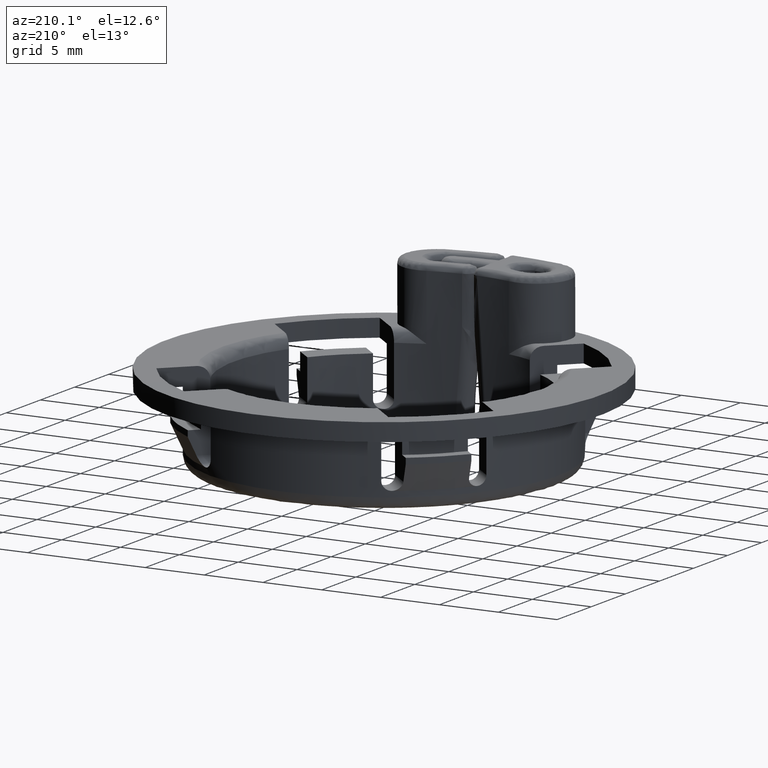
[diagram: clean part render]
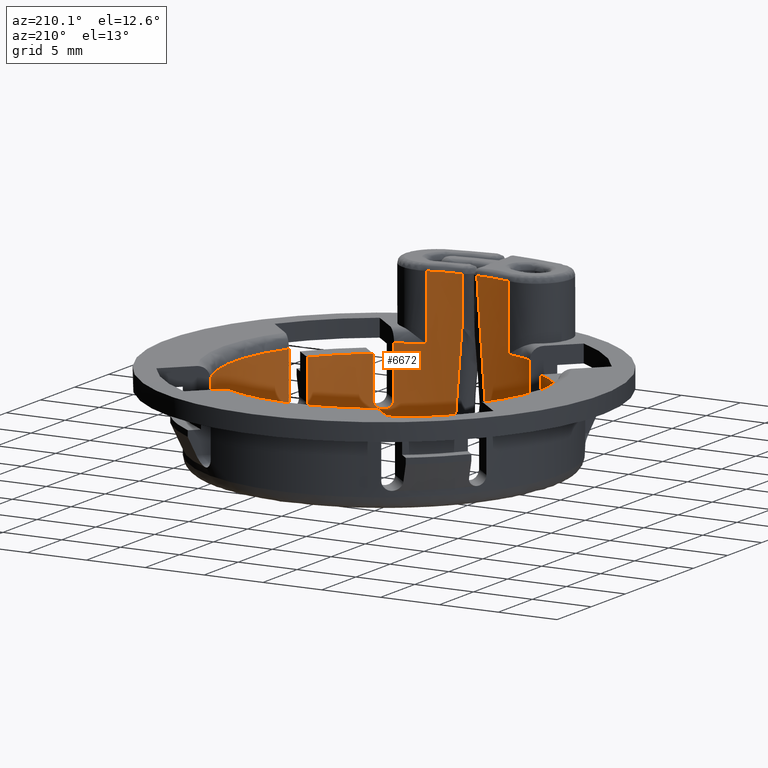
[diagram: same view with one face highlighted and labeled with its STEP entity id]
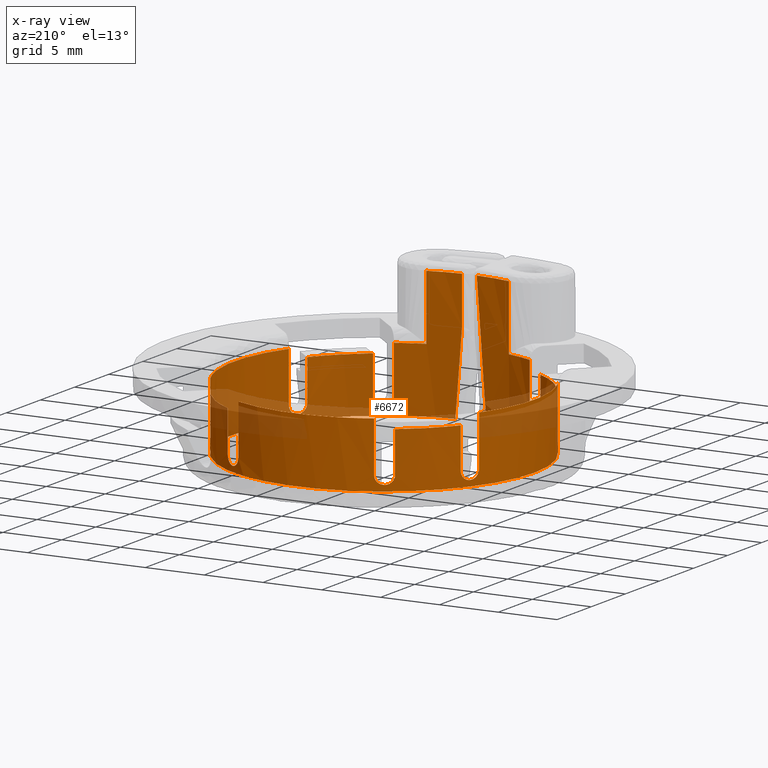
[diagram: x-ray of the same camera — body ghosted, the highlighted face saturated]
A machine part, auxiliary view. The second image highlights one B-rep face of the part: STEP entity #6672.
The next image is the same camera in x-ray: the body ghosted, the highlighted face saturated — about 16% of this face is hidden behind the body in this view.
In plain terms, the highlighted face is a freeform B-spline surface patch.
Its self-contained STEP definition (entity closure, byte-faithful):
#255=CARTESIAN_POINT('',(-11.426101228828021,5.769246979335611,6.500000000000000));
#256=VERTEX_POINT('',#255);
#301=CARTESIAN_POINT('',(-11.426101228827919,-5.769246979335651,6.500000000000000));
#302=VERTEX_POINT('',#301);
#331=CARTESIAN_POINT('',(-11.426101228828021,5.769246979335615,6.500000000000000));
#332=CARTESIAN_POINT('',(-14.339099288445963,-3.749084E-014,6.500000000000000));
#333=CARTESIAN_POINT('',(-11.426101228827919,-5.769246979335651,6.500000000000000));
#341=(BOUNDED_CURVE()B_SPLINE_CURVE(2,(#331,#332,#333),.UNSPECIFIED.,.F.,.U.)CURVE()GEOMETRIC_REPRESENTATION_ITEM()QUASI_UNIFORM_CURVE()RATIONAL_B_SPLINE_CURVE((1.0,0.892664158502192,1.0))REPRESENTATION_ITEM(''));
#342=EDGE_CURVE('',#256,#302,#341,.T.);
#366=CARTESIAN_POINT('',(5.769246979335620,11.426101228828021,6.500000000000000));
#367=VERTEX_POINT('',#366);
#412=CARTESIAN_POINT('',(-5.769246979335640,11.426101228827919,6.500000000000000));
#413=VERTEX_POINT('',#412);
#442=CARTESIAN_POINT('',(5.769246979335620,11.426101228828021,6.500000000000000));
#443=CARTESIAN_POINT('',(-2.688821E-014,14.339099288445766,6.500000000000000));
#444=CARTESIAN_POINT('',(-5.769246979335634,11.426101228827930,6.500000000000000));
#452=(BOUNDED_CURVE()B_SPLINE_CURVE(2,(#442,#443,#444),.UNSPECIFIED.,.F.,.U.)CURVE()GEOMETRIC_REPRESENTATION_ITEM()QUASI_UNIFORM_CURVE()RATIONAL_B_SPLINE_CURVE((1.0,0.892664158502195,1.0))REPRESENTATION_ITEM(''));
#453=EDGE_CURVE('',#367,#413,#452,.T.);
#477=CARTESIAN_POINT('',(11.426101228828040,-5.769246979335611,6.500000000000000));
#478=VERTEX_POINT('',#477);
#523=CARTESIAN_POINT('',(11.426101228827941,5.769246979335651,6.500000000000000));
#524=VERTEX_POINT('',#523);
#553=CARTESIAN_POINT('',(11.426101228828040,-5.769246979335611,6.500000000000000));
#554=CARTESIAN_POINT('',(14.339099288445958,4.230644E-014,6.500000000000000));
#555=CARTESIAN_POINT('',(11.426101228827941,5.769246979335651,6.500000000000000));
#563=(BOUNDED_CURVE()B_SPLINE_CURVE(2,(#553,#554,#555),.UNSPECIFIED.,.F.,.U.)CURVE()GEOMETRIC_REPRESENTATION_ITEM()QUASI_UNIFORM_CURVE()RATIONAL_B_SPLINE_CURVE((1.0,0.892664158502193,1.0))REPRESENTATION_ITEM(''));
#564=EDGE_CURVE('',#478,#524,#563,.T.);
#588=CARTESIAN_POINT('',(-5.769246979335600,-11.426101228828021,6.500000000000000));
#589=VERTEX_POINT('',#588);
#634=CARTESIAN_POINT('',(-3.465520429572950,-12.321938490036800,6.500000000000000));
#635=VERTEX_POINT('',#634);
#661=CARTESIAN_POINT('',(-5.769246979335600,-11.426101228828021,6.500000000000000));
#662=CARTESIAN_POINT('',(-4.660834955743553,-11.985758682486550,6.500000000000000));
#663=CARTESIAN_POINT('',(-3.465520429572950,-12.321938490036800,6.500000000000000));
#671=(BOUNDED_CURVE()B_SPLINE_CURVE(2,(#661,#662,#663),.UNSPECIFIED.,.F.,.U.)CURVE()GEOMETRIC_REPRESENTATION_ITEM()QUASI_UNIFORM_CURVE()RATIONAL_B_SPLINE_CURVE((1.0,0.995327768893923,1.0))REPRESENTATION_ITEM(''));
#672=EDGE_CURVE('',#589,#635,#671,.T.);
#696=CARTESIAN_POINT('',(3.523634311004535,-12.305445999325480,6.500000000000000));
#697=VERTEX_POINT('',#696);
#738=CARTESIAN_POINT('',(5.769246979335670,-11.426101228827919,6.500000000000000));
#739=VERTEX_POINT('',#738);
#768=CARTESIAN_POINT('',(3.523634311004534,-12.305445999325480,6.500000000000000));
#769=CARTESIAN_POINT('',(4.688044922747928,-11.972019873700958,6.500000000000000));
#770=CARTESIAN_POINT('',(5.769246979335670,-11.426101228827919,6.500000000000000));
#778=(BOUNDED_CURVE()B_SPLINE_CURVE(2,(#768,#769,#770),.UNSPECIFIED.,.F.,.U.)CURVE()GEOMETRIC_REPRESENTATION_ITEM()QUASI_UNIFORM_CURVE()RATIONAL_B_SPLINE_CURVE((1.0,0.995552837598897,1.0))REPRESENTATION_ITEM(''));
#779=EDGE_CURVE('',#697,#739,#778,.T.);
#932=CARTESIAN_POINT('',(-1.317224701742422,-12.732043005155299,0.999999999999890));
#933=VERTEX_POINT('',#932);
#990=CARTESIAN_POINT('',(-0.490827067669135,-12.790585943952960,11.691519390824901));
#991=VERTEX_POINT('',#990);
#1034=CARTESIAN_POINT('',(-0.490827067669135,-12.790585943952960,11.691519390824901));
#1035=CARTESIAN_POINT('',(-0.904973666108286,-12.774693446033966,6.333497773517452));
#1036=CARTESIAN_POINT('',(-1.317224701742425,-12.732043005155280,0.999999999999914));
#1044=(BOUNDED_CURVE()B_SPLINE_CURVE(2,(#1034,#1035,#1036),.UNSPECIFIED.,.F.,.U.)CURVE()GEOMETRIC_REPRESENTATION_ITEM()QUASI_UNIFORM_CURVE()RATIONAL_B_SPLINE_CURVE((1.0,0.999476211451635,1.0))REPRESENTATION_ITEM(''));
#1045=EDGE_CURVE('',#991,#933,#1044,.T.);
#1070=CARTESIAN_POINT('',(0.775045871559728,-12.776513761468040,8.014438615488121));
#1071=VERTEX_POINT('',#1070);
#1095=CARTESIAN_POINT('',(1.317224701742442,-12.732043005155280,0.999999999999892));
#1096=VERTEX_POINT('',#1095);
#1097=CARTESIAN_POINT('',(1.317224701742443,-12.732043005155280,0.999999999999907));
#1098=CARTESIAN_POINT('',(1.046607894781262,-12.760040329912327,4.501104940059881));
#1099=CARTESIAN_POINT('',(0.775045871559732,-12.776513761468040,8.014438615488123));
#1107=(BOUNDED_CURVE()B_SPLINE_CURVE(2,(#1097,#1098,#1099),.UNSPECIFIED.,.F.,.U.)CURVE()GEOMETRIC_REPRESENTATION_ITEM()QUASI_UNIFORM_CURVE()RATIONAL_B_SPLINE_CURVE((1.0,0.999774193612261,1.0))REPRESENTATION_ITEM(''));
#1108=EDGE_CURVE('',#1096,#1071,#1107,.T.);
#1367=CARTESIAN_POINT('',(-1.317224701742417,-12.732043005155290,0.999999999999890));
#1368=CARTESIAN_POINT('',(-13.409341111905693,-11.481023477074618,0.999999999999890));
#1369=CARTESIAN_POINT('',(-12.782999461511089,0.659488261462606,0.999999999999890));
#1370=CARTESIAN_POINT('',(-12.156657811116487,12.799999999999846,0.999999999999890));
#1371=CARTESIAN_POINT('',(0.0,12.799999999999841,0.999999999999890));
#1372=CARTESIAN_POINT('',(12.156657811116467,12.799999999999846,0.999999999999890));
#1373=CARTESIAN_POINT('',(12.782999461511089,0.659488261462628,0.999999999999890));
#1374=CARTESIAN_POINT('',(13.409341111905714,-11.481023477074594,0.999999999999890));
#1375=CARTESIAN_POINT('',(1.317224701742444,-12.732043005155280,0.999999999999890));
#1383=(BOUNDED_CURVE()B_SPLINE_CURVE(2,(#1367,#1368,#1369,#1370,#1371,#1372,#1373,#1374,#1375),.UNSPECIFIED.,.F.,.U.)B_SPLINE_CURVE_WITH_KNOTS((3,2,2,2,3),(0.0,0.250000000000000,0.500000000000000,0.750000000000000,1.0),.UNSPECIFIED.)CURVE()GEOMETRIC_REPRESENTATION_ITEM()RATIONAL_B_SPLINE_CURVE((1.0,0.725093966471512,1.0,0.725093966471512,1.0,0.725093966471512,1.0,0.725093966471512,1.0))REPRESENTATION_ITEM(''));
#1384=EDGE_CURVE('',#933,#1096,#1383,.T.);
#1466=CARTESIAN_POINT('',(11.426101228828040,-5.769246979335611,2.250000000000085));
#1467=VERTEX_POINT('',#1466);
#1473=CARTESIAN_POINT('',(10.644421728274480,-7.108887822341599,2.249999999999975));
#1474=VERTEX_POINT('',#1473);
#1475=CARTESIAN_POINT('',(10.644421728274480,-7.108887822341599,2.249999999999975));
#1476=CARTESIAN_POINT('',(10.644421728274510,-7.108887822341564,2.199601309834479));
#1477=CARTESIAN_POINT('',(10.647271355832810,-7.104626198292006,2.150078416635004));
#1478=CARTESIAN_POINT('',(10.655618103664271,-7.092096165056784,2.077052397637483));
#1479=CARTESIAN_POINT('',(10.659083941296210,-7.086888324420547,2.052921742902110));
#1480=CARTESIAN_POINT('',(10.667406613739359,-7.074354580281988,2.005093318093060));
#1481=CARTESIAN_POINT('',(10.672272573631940,-7.067014617621638,1.981406858999947));
#1482=CARTESIAN_POINT('',(10.688607769308630,-7.042304588709947,1.912610702677106));
#1483=CARTESIAN_POINT('',(10.701886054756120,-7.022139803950964,1.869182595362788));
#1484=CARTESIAN_POINT('',(10.725263581400240,-6.986338400642744,1.807665205409178));
#1485=CARTESIAN_POINT('',(10.733689111250580,-6.973391116625754,1.787663057246907));
#1486=CARTESIAN_POINT('',(10.751411709371640,-6.946035693688929,1.749580200353084));
#1487=CARTESIAN_POINT('',(10.760705395500031,-6.931633421230110,1.731477792505301));
#1488=CARTESIAN_POINT('',(10.789816630151430,-6.886301406991368,1.679901969772479));
#1489=CARTESIAN_POINT('',(10.810853089027169,-6.853266457607753,1.649134447485439));
#1490=CARTESIAN_POINT('',(10.856116733204081,-6.781337266833591,1.595009504673042));
#1491=CARTESIAN_POINT('',(10.879607495721670,-6.743610531696018,1.572530010306137));
#1492=CARTESIAN_POINT('',(10.915970823536240,-6.684468306884869,1.545309215109240));
#1493=CARTESIAN_POINT('',(10.928281671298370,-6.664325880981391,1.537326715793382));
#1494=CARTESIAN_POINT('',(10.953276365746250,-6.623165148985705,1.523574294658140));
#1495=CARTESIAN_POINT('',(10.965985129478961,-6.602103987775610,1.517806591990187));
#1496=CARTESIAN_POINT('',(11.003983859013550,-6.538712941549592,1.504146857308882));
#1497=CARTESIAN_POINT('',(11.029400376865301,-6.495756985102873,1.499725633300475));
#1498=CARTESIAN_POINT('',(11.080125403077609,-6.408849548459013,1.500300538301437));
#1499=CARTESIAN_POINT('',(11.104829096754340,-6.365936511187569,1.505273604238469));
#1500=CARTESIAN_POINT('',(11.140957645836620,-6.302353288004764,1.519456820441028));
#1501=CARTESIAN_POINT('',(11.152845265152941,-6.281291110462615,1.525313302394040));
#1502=CARTESIAN_POINT('',(11.176311912006010,-6.239441286555508,1.539329794775159));
#1503=CARTESIAN_POINT('',(11.187943811460640,-6.218557250898552,1.547541030637977));
#1504=CARTESIAN_POINT('',(11.221733206387251,-6.157505005200903,1.575232111988308));
#1505=CARTESIAN_POINT('',(11.242941161280720,-6.118663118791749,1.597779483166943));
#1506=CARTESIAN_POINT('',(11.282855929041970,-6.044743700254379,1.651002100867469));
#1507=CARTESIAN_POINT('',(11.301731048637990,-6.009341850074845,1.682086879110979));
#1508=CARTESIAN_POINT('',(11.335588112543229,-5.945229710413019,1.750479581060857));
#1509=CARTESIAN_POINT('',(11.350700964579531,-5.916284773226578,1.787829698773184));
#1510=CARTESIAN_POINT('',(11.370682884141470,-5.877735977789270,1.848727563902154));
#1511=CARTESIAN_POINT('',(11.376922916995600,-5.865644026169244,1.869966411630928));
#1512=CARTESIAN_POINT('',(11.388308167623780,-5.843508533426485,1.913563698469409));
#1513=CARTESIAN_POINT('',(11.393436222925910,-5.833499156015101,1.935822823325762));
#1514=CARTESIAN_POINT('',(11.407180606176480,-5.806602801509607,2.003957409492424));
#1515=CARTESIAN_POINT('',(11.414174968653411,-5.792816294838201,2.051176266014548));
#1516=CARTESIAN_POINT('',(11.421310332279139,-5.778728061084846,2.124844497892346));
#1517=CARTESIAN_POINT('',(11.423109749686240,-5.775168453600123,2.149784007016601));
#1518=CARTESIAN_POINT('',(11.425499767446681,-5.770438638865403,2.199704520876997));
#1519=CARTESIAN_POINT('',(11.426101228828140,-5.769246979335700,2.224789135637242));
#1520=CARTESIAN_POINT('',(11.426101228828040,-5.769246979335611,2.250000000000085));
#1521=B_SPLINE_CURVE_WITH_KNOTS('',3,(#1475,#1476,#1477,#1478,#1479,#1480,#1481,#1482,#1483,#1484,#1485,#1486,#1487,#1488,#1489,#1490,#1491,#1492,#1493,#1494,#1495,#1496,#1497,#1498,#1499,#1500,#1501,#1502,#1503,#1504,#1505,#1506,#1507,#1508,#1509,#1510,#1511,#1512,#1513,#1514,#1515,#1516,#1517,#1518,#1519,#1520),.UNSPECIFIED.,.F.,.U.,(4,2,2,2,2,2,2,2,2,2,2,2,2,2,2,2,2,2,2,2,2,2,4),(0.0,0.062500000000001,0.093750000000001,0.125000000000001,0.187500000000001,0.218750000000001,0.250000000000000,0.312499999999999,0.374999999999999,0.406249999999998,0.437499999999997,0.499999999999996,0.562499999999995,0.593749999999995,0.624999999999996,0.687499999999997,0.749999999999998,0.812499999999999,0.843750000000000,0.875000000000000,0.937500000000000,0.968750000000000,1.0),.UNSPECIFIED.);
#1522=EDGE_CURVE('',#1474,#1467,#1521,.T.);
#1608=CARTESIAN_POINT('',(7.108887822341710,-10.644421728274340,2.249999999999975));
#1609=VERTEX_POINT('',#1608);
#1615=CARTESIAN_POINT('',(5.769246979335670,-11.426101228827919,2.250000000000085));
#1616=VERTEX_POINT('',#1615);
#1617=CARTESIAN_POINT('',(5.769246979335670,-11.426101228827919,2.250000000000085));
#1618=CARTESIAN_POINT('',(5.769246979335663,-11.426101228827919,2.199592300903230));
#1619=CARTESIAN_POINT('',(5.773975995486814,-11.423716911454649,2.150098062179691));
#1620=CARTESIAN_POINT('',(5.787809684985552,-11.416710812128390,2.077161081137965));
#1621=CARTESIAN_POINT('',(5.793552628997502,-11.413799006025510,2.053067812503640));
#1622=CARTESIAN_POINT('',(5.807341274148302,-11.406789519425979,2.005328015558905));
#1623=CARTESIAN_POINT('',(5.815382027394419,-11.402694149797860,1.981754706108332));
#1624=CARTESIAN_POINT('',(5.842361926232979,-11.388907547100290,1.913298232830420));
#1625=CARTESIAN_POINT('',(5.864276956410916,-11.377657732626339,1.870119121827481));
#1626=CARTESIAN_POINT('',(5.902868090667478,-11.357656370473331,1.808962248265423));
#1627=CARTESIAN_POINT('',(5.916762000038353,-11.350427212350800,1.789106322532903));
#1628=CARTESIAN_POINT('',(5.945909309030207,-11.335185616334620,1.751389710168394));
#1629=CARTESIAN_POINT('',(5.961205211538145,-11.327151424486679,1.733443631048100));
#1630=CARTESIAN_POINT('',(6.009174170918264,-11.301819926579929,1.682253437914436));
#1631=CARTESIAN_POINT('',(6.044063901679034,-11.283221702187120,1.651521903439978));
#1632=CARTESIAN_POINT('',(6.118737042522461,-11.242902535944600,1.597696160846456));
#1633=CARTESIAN_POINT('',(6.157673729540607,-11.221639354026021,1.575163688252620));
#1634=CARTESIAN_POINT('',(6.218323017629271,-11.188073683000560,1.547643233592825));
#1635=CARTESIAN_POINT('',(6.238916521663270,-11.176604981004010,1.539523955002380));
#1636=CARTESIAN_POINT('',(6.280866951930407,-11.153084263908131,1.525437370595088));
#1637=CARTESIAN_POINT('',(6.302231159976467,-11.141027154441920,1.519482404915289));
#1638=CARTESIAN_POINT('',(6.366316047804713,-11.104613211571831,1.505192264134937));
#1639=CARTESIAN_POINT('',(6.409406936440115,-11.079803021082711,1.500256229181065));
#1640=CARTESIAN_POINT('',(6.496325180985290,-11.029065753987361,1.499763025992466));
#1641=CARTESIAN_POINT('',(6.539071384646824,-11.003768901262260,1.504225487396141));
#1642=CARTESIAN_POINT('',(6.601897328746579,-10.966109055274110,1.517761365073333));
#1643=CARTESIAN_POINT('',(6.622637768681631,-10.953595126899810,1.523421591780690));
#1644=CARTESIAN_POINT('',(6.663710391118809,-10.928656872759200,1.537098213620717));
#1645=CARTESIAN_POINT('',(6.684146923924994,-10.916167971379890,1.545169233400439));
#1646=CARTESIAN_POINT('',(6.743714153090354,-10.879544684470179,1.572561934403335));
#1647=CARTESIAN_POINT('',(6.781302131557135,-10.856136595413879,1.595036657494150));
#1648=CARTESIAN_POINT('',(6.852325857143007,-10.811447207718080,1.648373809018287));
#1649=CARTESIAN_POINT('',(6.886063172534895,-10.789968963012990,1.679656046757382));
#1650=CARTESIAN_POINT('',(6.946652903093800,-10.751060863136400,1.748540995440315));
#1651=CARTESIAN_POINT('',(6.973766480566114,-10.733470879193820,1.786209667357315));
#1652=CARTESIAN_POINT('',(7.009645852479429,-10.710045239531571,1.847643594362626));
#1653=CARTESIAN_POINT('',(7.020856901153601,-10.702696709731731,1.869080685345550));
#1654=CARTESIAN_POINT('',(7.041221962869772,-10.689309695044811,1.912852305666002));
#1655=CARTESIAN_POINT('',(7.050404069912488,-10.683253214869019,1.935204174326425));
#1656=CARTESIAN_POINT('',(7.075026814044812,-10.666976272061660,2.003628454797266));
#1657=CARTESIAN_POINT('',(7.087574643608433,-10.658629863096040,2.051055455715825));
#1658=CARTESIAN_POINT('',(7.104621772734687,-10.647274503533200,2.149705004147384));
#1659=CARTESIAN_POINT('',(7.108887822341757,-10.644421728274599,2.199605315814211));
#1660=CARTESIAN_POINT('',(7.108887822341710,-10.644421728274340,2.249999999999975));
#1661=B_SPLINE_CURVE_WITH_KNOTS('',3,(#1617,#1618,#1619,#1620,#1621,#1622,#1623,#1624,#1625,#1626,#1627,#1628,#1629,#1630,#1631,#1632,#1633,#1634,#1635,#1636,#1637,#1638,#1639,#1640,#1641,#1642,#1643,#1644,#1645,#1646,#1647,#1648,#1649,#1650,#1651,#1652,#1653,#1654,#1655,#1656,#1657,#1658,#1659,#1660),.UNSPECIFIED.,.F.,.U.,(4,2,2,2,2,2,2,2,2,2,2,2,2,2,2,2,2,2,2,2,2,4),(0.0,0.062500000000001,0.093750000000002,0.125000000000003,0.187500000000004,0.218750000000005,0.250000000000006,0.312500000000007,0.375000000000008,0.406250000000008,0.437500000000009,0.500000000000009,0.562500000000009,0.593750000000009,0.625000000000010,0.687500000000009,0.750000000000008,0.812500000000007,0.843750000000006,0.875000000000005,0.937500000000002,1.0),.UNSPECIFIED.);
#1662=EDGE_CURVE('',#1616,#1609,#1661,.T.);
#1690=CARTESIAN_POINT('',(10.644421728274340,7.108887822341690,2.249999999999975));
#1691=VERTEX_POINT('',#1690);
#1699=CARTESIAN_POINT('',(11.426101228827941,5.769246979335651,2.250000000000085));
#1700=VERTEX_POINT('',#1699);
#1701=CARTESIAN_POINT('',(11.426101228827941,5.769246979335651,2.250000000000085));
#1702=CARTESIAN_POINT('',(11.426101228827941,5.769246979335652,2.199592300903228));
#1703=CARTESIAN_POINT('',(11.423716911454420,5.773975995486804,2.150098062179704));
#1704=CARTESIAN_POINT('',(11.416710812128150,5.787809684985553,2.077161081137972));
#1705=CARTESIAN_POINT('',(11.413799006025281,5.793552628997508,2.053067812503643));
#1706=CARTESIAN_POINT('',(11.406789519425740,5.807341274148317,2.005328015558903));
#1707=CARTESIAN_POINT('',(11.402694149797631,5.815382027394418,1.981754706108392));
#1708=CARTESIAN_POINT('',(11.388907547100050,5.842361926232987,1.913298232830470));
#1709=CARTESIAN_POINT('',(11.377657732626099,5.864276956410934,1.870119121827525));
#1710=CARTESIAN_POINT('',(11.357656370473080,5.902868090667504,1.808962248265460));
#1711=CARTESIAN_POINT('',(11.350427212350560,5.916762000038346,1.789106322532990));
#1712=CARTESIAN_POINT('',(11.335185616334380,5.945909309030207,1.751389710168476));
#1713=CARTESIAN_POINT('',(11.327151424486450,5.961205211538149,1.733443631048181));
#1714=CARTESIAN_POINT('',(11.301819926579670,6.009174170918278,1.682253437914510));
#1715=CARTESIAN_POINT('',(11.283221702186900,6.044063901679015,1.651521903440085));
#1716=CARTESIAN_POINT('',(11.242902535944371,6.118737042522451,1.597696160846557));
#1717=CARTESIAN_POINT('',(11.221639354025781,6.157673729540602,1.575163688252719));
#1718=CARTESIAN_POINT('',(11.188073683000310,6.218323017629277,1.547643233592923));
#1719=CARTESIAN_POINT('',(11.176604981003759,6.238916521663279,1.539523955002478));
#1720=CARTESIAN_POINT('',(11.153084263907870,6.280866951930419,1.525437370595186));
#1721=CARTESIAN_POINT('',(11.141027154441691,6.302231159976447,1.519482404915398));
#1722=CARTESIAN_POINT('',(11.104613211571600,6.366316047804700,1.505192264135045));
#1723=CARTESIAN_POINT('',(11.079803021082480,6.409406936440099,1.500256229181175));
#1724=CARTESIAN_POINT('',(11.029065753987121,6.496325180985270,1.499763025992576));
#1725=CARTESIAN_POINT('',(11.003768901262021,6.539071384646789,1.504225487396251));
#1726=CARTESIAN_POINT('',(10.966109055273870,6.601897328746547,1.517761365073443));
#1727=CARTESIAN_POINT('',(10.953595126899589,6.622637768681599,1.523421591780799));
#1728=CARTESIAN_POINT('',(10.928656872758980,6.663710391118779,1.537098213620825));
#1729=CARTESIAN_POINT('',(10.916167971379670,6.684146923924947,1.545169233400541));
#1730=CARTESIAN_POINT('',(10.879544684469950,6.743714153090303,1.572561934403433));
#1731=CARTESIAN_POINT('',(10.856136595413661,6.781302131557080,1.595036657494245));
#1732=CARTESIAN_POINT('',(10.811447207717860,6.852325857142954,1.648373809018375));
#1733=CARTESIAN_POINT('',(10.789968963012759,6.886063172534835,1.679656046757465));
#1734=CARTESIAN_POINT('',(10.751060863136180,6.946652903093738,1.748540995440384));
#1735=CARTESIAN_POINT('',(10.733470879193600,6.973766480566050,1.786209667357378));
#1736=CARTESIAN_POINT('',(10.710045239531359,7.009645852479366,1.847643594362674));
#1737=CARTESIAN_POINT('',(10.702696709731510,7.020856901153546,1.869080685345615));
#1738=CARTESIAN_POINT('',(10.689309695044590,7.041221962869713,1.912852305666053));
#1739=CARTESIAN_POINT('',(10.683253214868801,7.050404069912432,1.935204174326471));
#1740=CARTESIAN_POINT('',(10.666976272061440,7.075026814044758,2.003628454797292));
#1741=CARTESIAN_POINT('',(10.658629863095820,7.087574643608375,2.051055455715839));
#1742=CARTESIAN_POINT('',(10.647274503532969,7.104621772734639,2.149705004147368));
#1743=CARTESIAN_POINT('',(10.644421728274450,7.108887822341603,2.199605315814236));
#1744=CARTESIAN_POINT('',(10.644421728274340,7.108887822341690,2.249999999999975));
#1745=B_SPLINE_CURVE_WITH_KNOTS('',3,(#1701,#1702,#1703,#1704,#1705,#1706,#1707,#1708,#1709,#1710,#1711,#1712,#1713,#1714,#1715,#1716,#1717,#1718,#1719,#1720,#1721,#1722,#1723,#1724,#1725,#1726,#1727,#1728,#1729,#1730,#1731,#1732,#1733,#1734,#1735,#1736,#1737,#1738,#1739,#1740,#1741,#1742,#1743,#1744),.UNSPECIFIED.,.F.,.U.,(4,2,2,2,2,2,2,2,2,2,2,2,2,2,2,2,2,2,2,2,2,4),(0.0,0.062499999999999,0.093749999999999,0.124999999999999,0.187499999999997,0.218749999999997,0.249999999999996,0.312499999999996,0.374999999999995,0.406249999999996,0.437499999999996,0.499999999999998,0.562499999999999,0.593750000000000,0.625000000000000,0.687500000000001,0.750000000000001,0.812500000000002,0.843750000000001,0.875000000000001,0.937500000000001,1.0),.UNSPECIFIED.);
#1746=EDGE_CURVE('',#1700,#1691,#1745,.T.);
#1830=CARTESIAN_POINT('',(5.769246979335620,11.426101228828021,2.250000000000085));
#1831=VERTEX_POINT('',#1830);
#1839=CARTESIAN_POINT('',(7.108887822341610,10.644421728274461,2.249999999999975));
#1840=VERTEX_POINT('',#1839);
#1841=CARTESIAN_POINT('',(7.108887822341610,10.644421728274461,2.249999999999975));
#1842=CARTESIAN_POINT('',(7.108887822341570,10.644421728274500,2.199601309834466));
#1843=CARTESIAN_POINT('',(7.104626198291789,10.647271355832700,2.150078416634997));
#1844=CARTESIAN_POINT('',(7.092096165056570,10.655618103664160,2.077052397637460));
#1845=CARTESIAN_POINT('',(7.086888324420333,10.659083941296091,2.052921742902080));
#1846=CARTESIAN_POINT('',(7.074354580281772,10.667406613739240,2.005093318093022));
#1847=CARTESIAN_POINT('',(7.067014617621437,10.672272573631821,1.981406858999922));
#1848=CARTESIAN_POINT('',(7.042304588709747,10.688607769308501,1.912610702677068));
#1849=CARTESIAN_POINT('',(7.022139803950763,10.701886054755990,1.869182595362742));
#1850=CARTESIAN_POINT('',(6.986338400642544,10.725263581400119,1.807665205409121));
#1851=CARTESIAN_POINT('',(6.973391116625557,10.733689111250451,1.787663057246848));
#1852=CARTESIAN_POINT('',(6.946035693688729,10.751411709371510,1.749580200353020));
#1853=CARTESIAN_POINT('',(6.931633421229914,10.760705395499899,1.731477792505235));
#1854=CARTESIAN_POINT('',(6.886301406991169,10.789816630151300,1.679901969772406));
#1855=CARTESIAN_POINT('',(6.853266457607554,10.810853089027040,1.649134447485360));
#1856=CARTESIAN_POINT('',(6.781337266833392,10.856116733203949,1.595009504672956));
#1857=CARTESIAN_POINT('',(6.743610531695811,10.879607495721540,1.572530010306043));
#1858=CARTESIAN_POINT('',(6.684468306884662,10.915970823536121,1.545309215109142));
#1859=CARTESIAN_POINT('',(6.664325880981187,10.928281671298249,1.537326715793283));
#1860=CARTESIAN_POINT('',(6.623165148985501,10.953276365746129,1.523574294658039));
#1861=CARTESIAN_POINT('',(6.602103987775386,10.965985129478840,1.517806591990080));
#1862=CARTESIAN_POINT('',(6.538712941549375,11.003983859013440,1.504146857308775));
#1863=CARTESIAN_POINT('',(6.495756985102636,11.029400376865190,1.499725633300364));
#1864=CARTESIAN_POINT('',(6.408849548458779,11.080125403077499,1.500300538301326));
#1865=CARTESIAN_POINT('',(6.365936511187329,11.104829096754230,1.505273604238359));
#1866=CARTESIAN_POINT('',(6.302353288004525,11.140957645836499,1.519456820440917));
#1867=CARTESIAN_POINT('',(6.281291110462379,11.152845265152820,1.525313302393927));
#1868=CARTESIAN_POINT('',(6.239441286555280,11.176311912005900,1.539329794775046));
#1869=CARTESIAN_POINT('',(6.218557250898282,11.187943811460560,1.547541030637881));
#1870=CARTESIAN_POINT('',(6.157505005200640,11.221733206387150,1.575232111988210));
#1871=CARTESIAN_POINT('',(6.118663118791491,11.242941161280619,1.597779483166845));
#1872=CARTESIAN_POINT('',(6.044743700254128,11.282855929041871,1.651002100867366));
#1873=CARTESIAN_POINT('',(6.009341850074565,11.301731048637899,1.682086879110908));
#1874=CARTESIAN_POINT('',(5.945229710412748,11.335588112543141,1.750479581060783));
#1875=CARTESIAN_POINT('',(5.916284773226314,11.350700964579429,1.787829698773110));
#1876=CARTESIAN_POINT('',(5.877735977789012,11.370682884141370,1.848727563902075));
#1877=CARTESIAN_POINT('',(5.865644026168961,11.376922916995509,1.869966411630894));
#1878=CARTESIAN_POINT('',(5.843508533426208,11.388308167623681,1.913563698469372));
#1879=CARTESIAN_POINT('',(5.833499156014828,11.393436222925811,1.935822823325724));
#1880=CARTESIAN_POINT('',(5.806602801509343,11.407180606176381,2.003957409492384));
#1881=CARTESIAN_POINT('',(5.792816294837941,11.414174968653310,2.051176266014505));
#1882=CARTESIAN_POINT('',(5.778728061084593,11.421310332279029,2.124844497892299));
#1883=CARTESIAN_POINT('',(5.775168453599870,11.423109749686139,2.149784007016589));
#1884=CARTESIAN_POINT('',(5.770438638865153,11.425499767446571,2.199704520876982));
#1885=CARTESIAN_POINT('',(5.769246979335559,11.426101228827960,2.224789135637229));
#1886=CARTESIAN_POINT('',(5.769246979335620,11.426101228828021,2.250000000000085));
#1887=B_SPLINE_CURVE_WITH_KNOTS('',3,(#1841,#1842,#1843,#1844,#1845,#1846,#1847,#1848,#1849,#1850,#1851,#1852,#1853,#1854,#1855,#1856,#1857,#1858,#1859,#1860,#1861,#1862,#1863,#1864,#1865,#1866,#1867,#1868,#1869,#1870,#1871,#1872,#1873,#1874,#1875,#1876,#1877,#1878,#1879,#1880,#1881,#1882,#1883,#1884,#1885,#1886),.UNSPECIFIED.,.F.,.U.,(4,2,2,2,2,2,2,2,2,2,2,2,2,2,2,2,2,2,2,2,2,2,4),(0.0,0.062500000000001,0.093750000000002,0.125000000000002,0.187500000000001,0.218750000000001,0.250000000000001,0.312500000000000,0.375000000000000,0.406250000000000,0.437500000000000,0.499999999999999,0.562499999999999,0.593749999999999,0.624999999999999,0.687499999999999,0.749999999999999,0.812499999999999,0.843749999999999,0.874999999999999,0.937500000000000,0.968750000000000,1.0),.UNSPECIFIED.);
#1888=EDGE_CURVE('',#1840,#1831,#1887,.T.);
#1972=CARTESIAN_POINT('',(-11.426101228828021,5.769246979335611,2.250000000000085));
#1973=VERTEX_POINT('',#1972);
#1981=CARTESIAN_POINT('',(-10.644421728274439,7.108887822341599,2.249999999999975));
#1982=VERTEX_POINT('',#1981);
#1983=CARTESIAN_POINT('',(-10.644421728274439,7.108887822341599,2.249999999999975));
#1984=CARTESIAN_POINT('',(-10.644421728274510,7.108887822341561,2.199601309834467));
#1985=CARTESIAN_POINT('',(-10.647271355832730,7.104626198291816,2.150078416634995));
#1986=CARTESIAN_POINT('',(-10.655618103664180,7.092096165056598,2.077052397637456));
#1987=CARTESIAN_POINT('',(-10.659083941296119,7.086888324420364,2.052921742902078));
#1988=CARTESIAN_POINT('',(-10.667406613739271,7.074354580281808,2.005093318093019));
#1989=CARTESIAN_POINT('',(-10.672272573631849,7.067014617621468,1.981406858999921));
#1990=CARTESIAN_POINT('',(-10.688607769308531,7.042304588709779,1.912610702677068));
#1991=CARTESIAN_POINT('',(-10.701886054756031,7.022139803950795,1.869182595362741));
#1992=CARTESIAN_POINT('',(-10.725263581400149,6.986338400642580,1.807665205409121));
#1993=CARTESIAN_POINT('',(-10.733689111250490,6.973391116625590,1.787663057246847));
#1994=CARTESIAN_POINT('',(-10.751411709371551,6.946035693688766,1.749580200353019));
#1995=CARTESIAN_POINT('',(-10.760705395499929,6.931633421229947,1.731477792505234));
#1996=CARTESIAN_POINT('',(-10.789816630151339,6.886301406991203,1.679901969772404));
#1997=CARTESIAN_POINT('',(-10.810853089027070,6.853266457607587,1.649134447485360));
#1998=CARTESIAN_POINT('',(-10.856116733203990,6.781337266833424,1.595009504672954));
#1999=CARTESIAN_POINT('',(-10.879607495721579,6.743610531695844,1.572530010306042));
#2000=CARTESIAN_POINT('',(-10.915970823536160,6.684468306884697,1.545309215109142));
#2001=CARTESIAN_POINT('',(-10.928281671298290,6.664325880981224,1.537326715793284));
#2002=CARTESIAN_POINT('',(-10.953276365746170,6.623165148985540,1.523574294658039));
#2003=CARTESIAN_POINT('',(-10.965985129478890,6.602103987775426,1.517806591990080));
#2004=CARTESIAN_POINT('',(-11.003983859013481,6.538712941549411,1.504146857308774));
#2005=CARTESIAN_POINT('',(-11.029400376865230,6.495756985102674,1.499725633300364));
#2006=CARTESIAN_POINT('',(-11.080125403077540,6.408849548458818,1.500300538301327));
#2007=CARTESIAN_POINT('',(-11.104829096754271,6.365936511187370,1.505273604238359));
#2008=CARTESIAN_POINT('',(-11.140957645836540,6.302353288004569,1.519456820440917));
#2009=CARTESIAN_POINT('',(-11.152845265152870,6.281291110462424,1.525313302393929));
#2010=CARTESIAN_POINT('',(-11.176311912005939,6.239441286555319,1.539329794775046));
#2011=CARTESIAN_POINT('',(-11.187943811460601,6.218557250898327,1.547541030637881));
#2012=CARTESIAN_POINT('',(-11.221733206387199,6.157505005200681,1.575232111988210));
#2013=CARTESIAN_POINT('',(-11.242941161280660,6.118663118791536,1.597779483166846));
#2014=CARTESIAN_POINT('',(-11.282855929041910,6.044743700254172,1.651002100867367));
#2015=CARTESIAN_POINT('',(-11.301731048637951,6.009341850074607,1.682086879110910));
#2016=CARTESIAN_POINT('',(-11.335588112543180,5.945229710412794,1.750479581060786));
#2017=CARTESIAN_POINT('',(-11.350700964579479,5.916284773226360,1.787829698773110));
#2018=CARTESIAN_POINT('',(-11.370682884141420,5.877735977789056,1.848727563902076));
#2019=CARTESIAN_POINT('',(-11.376922916995561,5.865644026169009,1.869966411630896));
#2020=CARTESIAN_POINT('',(-11.388308167623730,5.843508533426253,1.913563698469375));
#2021=CARTESIAN_POINT('',(-11.393436222925869,5.833499156014876,1.935822823325727));
#2022=CARTESIAN_POINT('',(-11.407180606176430,5.806602801509395,2.003957409492386));
#2023=CARTESIAN_POINT('',(-11.414174968653359,5.792816294837994,2.051176266014507));
#2024=CARTESIAN_POINT('',(-11.421310332279081,5.778728061084645,2.124844497892299));
#2025=CARTESIAN_POINT('',(-11.423109749686191,5.775168453599918,2.149784007016591));
#2026=CARTESIAN_POINT('',(-11.425499767446629,5.770438638865205,2.199704520876986));
#2027=CARTESIAN_POINT('',(-11.426101228828029,5.769246979335609,2.224789135637233));
#2028=CARTESIAN_POINT('',(-11.426101228828021,5.769246979335611,2.250000000000085));
#2029=B_SPLINE_CURVE_WITH_KNOTS('',3,(#1983,#1984,#1985,#1986,#1987,#1988,#1989,#1990,#1991,#1992,#1993,#1994,#1995,#1996,#1997,#1998,#1999,#2000,#2001,#2002,#2003,#2004,#2005,#2006,#2007,#2008,#2009,#2010,#2011,#2012,#2013,#2014,#2015,#2016,#2017,#2018,#2019,#2020,#2021,#2022,#2023,#2024,#2025,#2026,#2027,#2028),.UNSPECIFIED.,.F.,.U.,(4,2,2,2,2,2,2,2,2,2,2,2,2,2,2,2,2,2,2,2,2,2,4),(0.0,0.062499999999999,0.093749999999998,0.124999999999998,0.187499999999997,0.218749999999997,0.249999999999996,0.312499999999996,0.374999999999995,0.406249999999995,0.437499999999995,0.499999999999995,0.562499999999996,0.593749999999996,0.624999999999996,0.687499999999997,0.749999999999998,0.812499999999998,0.843749999999999,0.874999999999999,0.937500000000000,0.968750000000000,1.0),.UNSPECIFIED.);
#2030=EDGE_CURVE('',#1982,#1973,#2029,.T.);
#2114=CARTESIAN_POINT('',(-7.108887822341679,10.644421728274340,2.249999999999975));
#2115=VERTEX_POINT('',#2114);
#2123=CARTESIAN_POINT('',(-5.769246979335640,11.426101228827919,2.250000000000085));
#2124=VERTEX_POINT('',#2123);
#2125=CARTESIAN_POINT('',(-5.769246979335640,11.426101228827919,2.250000000000085));
#2126=CARTESIAN_POINT('',(-5.769246979335641,11.426101228827919,2.199592300903229));
#2127=CARTESIAN_POINT('',(-5.773975995486748,11.423716911454379,2.150098062179703));
#2128=CARTESIAN_POINT('',(-5.787809684985497,11.416710812128111,2.077161081137971));
#2129=CARTESIAN_POINT('',(-5.793552628997450,11.413799006025229,2.053067812503643));
#2130=CARTESIAN_POINT('',(-5.807341274148259,11.406789519425690,2.005328015558903));
#2131=CARTESIAN_POINT('',(-5.815382027394358,11.402694149797579,1.981754706108388));
#2132=CARTESIAN_POINT('',(-5.842361926232932,11.388907547100009,1.913298232830468));
#2133=CARTESIAN_POINT('',(-5.864276956410875,11.377657732626050,1.870119121827523));
#2134=CARTESIAN_POINT('',(-5.902868090667449,11.357656370473030,1.808962248265458));
#2135=CARTESIAN_POINT('',(-5.916762000038291,11.350427212350510,1.789106322532989));
#2136=CARTESIAN_POINT('',(-5.945909309030150,11.335185616334330,1.751389710168475));
#2137=CARTESIAN_POINT('',(-5.961205211538094,11.327151424486400,1.733443631048179));
#2138=CARTESIAN_POINT('',(-6.009174170918226,11.301819926579631,1.682253437914508));
#2139=CARTESIAN_POINT('',(-6.044063901678961,11.283221702186850,1.651521903440083));
#2140=CARTESIAN_POINT('',(-6.118737042522398,11.242902535944321,1.597696160846555));
#2141=CARTESIAN_POINT('',(-6.157673729540552,11.221639354025729,1.575163688252718));
#2142=CARTESIAN_POINT('',(-6.218323017629225,11.188073683000271,1.547643233592921));
#2143=CARTESIAN_POINT('',(-6.238916521663228,11.176604981003720,1.539523955002477));
#2144=CARTESIAN_POINT('',(-6.280866951930370,11.153084263907830,1.525437370595185));
#2145=CARTESIAN_POINT('',(-6.302231159976399,11.141027154441650,1.519482404915397));
#2146=CARTESIAN_POINT('',(-6.366316047804649,11.104613211571561,1.505192264135044));
#2147=CARTESIAN_POINT('',(-6.409406936440048,11.079803021082430,1.500256229181174));
#2148=CARTESIAN_POINT('',(-6.496325180985221,11.029065753987080,1.499763025992575));
#2149=CARTESIAN_POINT('',(-6.539071384646745,11.003768901261990,1.504225487396251));
#2150=CARTESIAN_POINT('',(-6.601897328746501,10.966109055273840,1.517761365073443));
#2151=CARTESIAN_POINT('',(-6.622637768681556,10.953595126899550,1.523421591780800));
#2152=CARTESIAN_POINT('',(-6.663710391118735,10.928656872758941,1.537098213620825));
#2153=CARTESIAN_POINT('',(-6.684146923924901,10.916167971379640,1.545169233400541));
#2154=CARTESIAN_POINT('',(-6.743714153090258,10.879544684469920,1.572561934403432));
#2155=CARTESIAN_POINT('',(-6.781302131557037,10.856136595413620,1.595036657494245));
#2156=CARTESIAN_POINT('',(-6.852325857142914,10.811447207717830,1.648373809018375));
#2157=CARTESIAN_POINT('',(-6.886063172534795,10.789968963012740,1.679656046757465));
#2158=CARTESIAN_POINT('',(-6.946652903093695,10.751060863136150,1.748540995440383));
#2159=CARTESIAN_POINT('',(-6.973766480566011,10.733470879193570,1.786209667357377));
#2160=CARTESIAN_POINT('',(-7.009645852479324,10.710045239531331,1.847643594362674));
#2161=CARTESIAN_POINT('',(-7.020856901153507,10.702696709731480,1.869080685345613));
#2162=CARTESIAN_POINT('',(-7.041221962869673,10.689309695044560,1.912852305666052));
#2163=CARTESIAN_POINT('',(-7.050404069912392,10.683253214868770,1.935204174326470));
#2164=CARTESIAN_POINT('',(-7.075026814044723,10.666976272061421,2.003628454797294));
#2165=CARTESIAN_POINT('',(-7.087574643608341,10.658629863095790,2.051055455715837));
#2166=CARTESIAN_POINT('',(-7.104621772734601,10.647274503532950,2.149705004147366));
#2167=CARTESIAN_POINT('',(-7.108887822341573,10.644421728274400,2.199605315814235));
#2168=CARTESIAN_POINT('',(-7.108887822341679,10.644421728274340,2.249999999999975));
#2169=B_SPLINE_CURVE_WITH_KNOTS('',3,(#2125,#2126,#2127,#2128,#2129,#2130,#2131,#2132,#2133,#2134,#2135,#2136,#2137,#2138,#2139,#2140,#2141,#2142,#2143,#2144,#2145,#2146,#2147,#2148,#2149,#2150,#2151,#2152,#2153,#2154,#2155,#2156,#2157,#2158,#2159,#2160,#2161,#2162,#2163,#2164,#2165,#2166,#2167,#2168),.UNSPECIFIED.,.F.,.U.,(4,2,2,2,2,2,2,2,2,2,2,2,2,2,2,2,2,2,2,2,2,4),(0.0,0.062500000000001,0.093750000000001,0.125000000000002,0.187500000000003,0.218750000000003,0.250000000000003,0.312500000000004,0.375000000000004,0.406250000000004,0.437500000000004,0.500000000000003,0.562500000000002,0.593750000000002,0.625000000000001,0.687500000000001,0.750000000000000,0.812499999999999,0.843749999999999,0.874999999999999,0.937499999999999,1.0),.UNSPECIFIED.);
#2170=EDGE_CURVE('',#2124,#2115,#2169,.T.);
#2312=CARTESIAN_POINT('',(-10.644421728274320,-7.108887822341690,2.249999999999975));
#2313=VERTEX_POINT('',#2312);
#2319=CARTESIAN_POINT('',(-11.426101228827919,-5.769246979335651,2.250000000000085));
#2320=VERTEX_POINT('',#2319);
#2321=CARTESIAN_POINT('',(-11.426101228827919,-5.769246979335651,2.250000000000085));
#2322=CARTESIAN_POINT('',(-11.426101228827930,-5.769246979335645,2.199592300903229));
#2323=CARTESIAN_POINT('',(-11.423716911454600,-5.773975995486762,2.150098062179689));
#2324=CARTESIAN_POINT('',(-11.416710812128340,-5.787809684985500,2.077161081137965));
#2325=CARTESIAN_POINT('',(-11.413799006025460,-5.793552628997451,2.053067812503640));
#2326=CARTESIAN_POINT('',(-11.406789519425940,-5.807341274148253,2.005328015558906));
#2327=CARTESIAN_POINT('',(-11.402694149797810,-5.815382027394371,1.981754706108331));
#2328=CARTESIAN_POINT('',(-11.388907547100249,-5.842361926232933,1.913298232830419));
#2329=CARTESIAN_POINT('',(-11.377657732626300,-5.864276956410870,1.870119121827480));
#2330=CARTESIAN_POINT('',(-11.357656370473279,-5.902868090667430,1.808962248265421));
#2331=CARTESIAN_POINT('',(-11.350427212350750,-5.916762000038304,1.789106322532902));
#2332=CARTESIAN_POINT('',(-11.335185616334570,-5.945909309030160,1.751389710168393));
#2333=CARTESIAN_POINT('',(-11.327151424486630,-5.961205211538098,1.733443631048099));
#2334=CARTESIAN_POINT('',(-11.301819926579880,-6.009174170918220,1.682253437914433));
#2335=CARTESIAN_POINT('',(-11.283221702187079,-6.044063901678986,1.651521903439977));
#2336=CARTESIAN_POINT('',(-11.242902535944561,-6.118737042522417,1.597696160846455));
#2337=CARTESIAN_POINT('',(-11.221639354025969,-6.157673729540563,1.575163688252619));
#2338=CARTESIAN_POINT('',(-11.188073683000511,-6.218323017629228,1.547643233592823));
#2339=CARTESIAN_POINT('',(-11.176604981003971,-6.238916521663228,1.539523955002380));
#2340=CARTESIAN_POINT('',(-11.153084263908079,-6.280866951930364,1.525437370595087));
#2341=CARTESIAN_POINT('',(-11.141027154441870,-6.302231159976429,1.519482404915288));
#2342=CARTESIAN_POINT('',(-11.104613211571790,-6.366316047804673,1.505192264134936));
#2343=CARTESIAN_POINT('',(-11.079803021082670,-6.409406936440075,1.500256229181065));
#2344=CARTESIAN_POINT('',(-11.029065753987309,-6.496325180985248,1.499763025992465));
#2345=CARTESIAN_POINT('',(-11.003768901262220,-6.539071384646784,1.504225487396141));
#2346=CARTESIAN_POINT('',(-10.966109055274060,-6.601897328746541,1.517761365073334));
#2347=CARTESIAN_POINT('',(-10.953595126899780,-6.622637768681594,1.523421591780691));
#2348=CARTESIAN_POINT('',(-10.928656872759170,-6.663710391118775,1.537098213620717));
#2349=CARTESIAN_POINT('',(-10.916167971379860,-6.684146923924957,1.545169233400440));
#2350=CARTESIAN_POINT('',(-10.879544684470140,-6.743714153090316,1.572561934403335));
#2351=CARTESIAN_POINT('',(-10.856136595413840,-6.781302131557098,1.595036657494151));
#2352=CARTESIAN_POINT('',(-10.811447207718039,-6.852325857142972,1.648373809018287));
#2353=CARTESIAN_POINT('',(-10.789968963012949,-6.886063172534858,1.679656046757381));
#2354=CARTESIAN_POINT('',(-10.751060863136370,-6.946652903093770,1.748540995440315));
#2355=CARTESIAN_POINT('',(-10.733470879193790,-6.973766480566081,1.786209667357315));
#2356=CARTESIAN_POINT('',(-10.710045239531540,-7.009645852479396,1.847643594362626));
#2357=CARTESIAN_POINT('',(-10.702696709731701,-7.020856901153569,1.869080685345552));
#2358=CARTESIAN_POINT('',(-10.689309695044781,-7.041221962869741,1.912852305666003));
#2359=CARTESIAN_POINT('',(-10.683253214868991,-7.050404069912457,1.935204174326426));
#2360=CARTESIAN_POINT('',(-10.666976272061630,-7.075026814044784,2.003628454797267));
#2361=CARTESIAN_POINT('',(-10.658629863096010,-7.087574643608398,2.051055455715825));
#2362=CARTESIAN_POINT('',(-10.647274503533170,-7.104621772734657,2.149705004147383));
#2363=CARTESIAN_POINT('',(-10.644421728274560,-7.108887822341727,2.199605315814212));
#2364=CARTESIAN_POINT('',(-10.644421728274320,-7.108887822341690,2.249999999999975));
#2365=B_SPLINE_CURVE_WITH_KNOTS('',3,(#2321,#2322,#2323,#2324,#2325,#2326,#2327,#2328,#2329,#2330,#2331,#2332,#2333,#2334,#2335,#2336,#2337,#2338,#2339,#2340,#2341,#2342,#2343,#2344,#2345,#2346,#2347,#2348,#2349,#2350,#2351,#2352,#2353,#2354,#2355,#2356,#2357,#2358,#2359,#2360,#2361,#2362,#2363,#2364),.UNSPECIFIED.,.F.,.U.,(4,2,2,2,2,2,2,2,2,2,2,2,2,2,2,2,2,2,2,2,2,4),(0.0,0.062499999999999,0.093749999999998,0.124999999999997,0.187499999999995,0.218749999999994,0.249999999999993,0.312499999999991,0.374999999999989,0.406249999999989,0.437499999999988,0.499999999999987,0.562499999999987,0.593749999999987,0.624999999999987,0.687499999999989,0.749999999999990,0.812499999999991,0.843749999999993,0.874999999999994,0.937499999999997,1.0),.UNSPECIFIED.);
#2366=EDGE_CURVE('',#2320,#2313,#2365,.T.);
#2452=CARTESIAN_POINT('',(-5.769246979335600,-11.426101228828021,2.250000000000085));
#2453=VERTEX_POINT('',#2452);
#2459=CARTESIAN_POINT('',(-7.108887822341580,-10.644421728274461,2.249999999999975));
#2460=VERTEX_POINT('',#2459);
#2461=CARTESIAN_POINT('',(-7.108887822341580,-10.644421728274461,2.249999999999975));
#2462=CARTESIAN_POINT('',(-7.108887822341556,-10.644421728274510,2.199601309834480));
#2463=CARTESIAN_POINT('',(-7.104626198292046,-10.647271355832840,2.150078416635000));
#2464=CARTESIAN_POINT('',(-7.092096165056822,-10.655618103664301,2.077052397637483));
#2465=CARTESIAN_POINT('',(-7.086888324420584,-10.659083941296240,2.052921742902110));
#2466=CARTESIAN_POINT('',(-7.074354580282022,-10.667406613739381,2.005093318093062));
#2467=CARTESIAN_POINT('',(-7.067014617621674,-10.672272573631970,1.981406858999943));
#2468=CARTESIAN_POINT('',(-7.042304588709985,-10.688607769308661,1.912610702677105));
#2469=CARTESIAN_POINT('',(-7.022139803951001,-10.701886054756150,1.869182595362786));
#2470=CARTESIAN_POINT('',(-6.986338400642782,-10.725263581400270,1.807665205409177));
#2471=CARTESIAN_POINT('',(-6.973391116625795,-10.733689111250611,1.787663057246905));
#2472=CARTESIAN_POINT('',(-6.946035693688968,-10.751411709371670,1.749580200353082));
#2473=CARTESIAN_POINT('',(-6.931633421230148,-10.760705395500061,1.731477792505299));
#2474=CARTESIAN_POINT('',(-6.886301406991406,-10.789816630151460,1.679901969772477));
#2475=CARTESIAN_POINT('',(-6.853266457607790,-10.810853089027200,1.649134447485438));
#2476=CARTESIAN_POINT('',(-6.781337266833629,-10.856116733204111,1.595009504673041));
#2477=CARTESIAN_POINT('',(-6.743610531696059,-10.879607495721711,1.572530010306135));
#2478=CARTESIAN_POINT('',(-6.684468306884908,-10.915970823536281,1.545309215109239));
#2479=CARTESIAN_POINT('',(-6.664325880981433,-10.928281671298411,1.537326715793381));
#2480=CARTESIAN_POINT('',(-6.623165148985747,-10.953276365746291,1.523574294658138));
#2481=CARTESIAN_POINT('',(-6.602103987775653,-10.965985129479000,1.517806591990186));
#2482=CARTESIAN_POINT('',(-6.538712941549635,-11.003983859013591,1.504146857308881));
#2483=CARTESIAN_POINT('',(-6.495756985102911,-11.029400376865331,1.499725633300473));
#2484=CARTESIAN_POINT('',(-6.408849548459059,-11.080125403077650,1.500300538301437));
#2485=CARTESIAN_POINT('',(-6.365936511187610,-11.104829096754379,1.505273604238471));
#2486=CARTESIAN_POINT('',(-6.302353288004806,-11.140957645836650,1.519456820441029));
#2487=CARTESIAN_POINT('',(-6.281291110462656,-11.152845265152980,1.525313302394041));
#2488=CARTESIAN_POINT('',(-6.239441286555553,-11.176311912006049,1.539329794775161));
#2489=CARTESIAN_POINT('',(-6.218557250898599,-11.187943811460690,1.547541030637981));
#2490=CARTESIAN_POINT('',(-6.157505005200946,-11.221733206387290,1.575232111988311));
#2491=CARTESIAN_POINT('',(-6.118663118791796,-11.242941161280759,1.597779483166946));
#2492=CARTESIAN_POINT('',(-6.044743700254428,-11.282855929042020,1.651002100867473));
#2493=CARTESIAN_POINT('',(-6.009341850074897,-11.301731048638040,1.682086879110982));
#2494=CARTESIAN_POINT('',(-5.945229710413067,-11.335588112543270,1.750479581060861));
#2495=CARTESIAN_POINT('',(-5.916284773226630,-11.350700964579580,1.787829698773188));
#2496=CARTESIAN_POINT('',(-5.877735977789322,-11.370682884141520,1.848727563902159));
#2497=CARTESIAN_POINT('',(-5.865644026169297,-11.376922916995650,1.869966411630931));
#2498=CARTESIAN_POINT('',(-5.843508533426540,-11.388308167623819,1.913563698469412));
#2499=CARTESIAN_POINT('',(-5.833499156015154,-11.393436222925960,1.935822823325764));
#2500=CARTESIAN_POINT('',(-5.806602801509666,-11.407180606176521,2.003957409492428));
#2501=CARTESIAN_POINT('',(-5.792816294838256,-11.414174968653461,2.051176266014551));
#2502=CARTESIAN_POINT('',(-5.778728061084902,-11.421310332279189,2.124844497892348));
#2503=CARTESIAN_POINT('',(-5.775168453600178,-11.423109749686290,2.149784007016603));
#2504=CARTESIAN_POINT('',(-5.770438638865459,-11.425499767446730,2.199704520877000));
#2505=CARTESIAN_POINT('',(-5.769246979335752,-11.426101228828200,2.224789135637246));
#2506=CARTESIAN_POINT('',(-5.769246979335600,-11.426101228828021,2.250000000000085));
#2507=B_SPLINE_CURVE_WITH_KNOTS('',3,(#2461,#2462,#2463,#2464,#2465,#2466,#2467,#2468,#2469,#2470,#2471,#2472,#2473,#2474,#2475,#2476,#2477,#2478,#2479,#2480,#2481,#2482,#2483,#2484,#2485,#2486,#2487,#2488,#2489,#2490,#2491,#2492,#2493,#2494,#2495,#2496,#2497,#2498,#2499,#2500,#2501,#2502,#2503,#2504,#2505,#2506),.UNSPECIFIED.,.F.,.U.,(4,2,2,2,2,2,2,2,2,2,2,2,2,2,2,2,2,2,2,2,2,2,4),(0.0,0.062500000000001,0.093750000000002,0.125000000000002,0.187500000000005,0.218750000000005,0.250000000000006,0.312500000000006,0.375000000000006,0.406250000000006,0.437500000000006,0.500000000000006,0.562500000000006,0.593750000000005,0.625000000000005,0.687500000000004,0.750000000000002,0.812500000000001,0.843750000000001,0.875000000000001,0.937500000000000,0.968750000000000,1.0),.UNSPECIFIED.);
#2508=EDGE_CURVE('',#2460,#2453,#2507,.T.);
#2525=CARTESIAN_POINT('',(10.644421728274340,7.108887822341690,5.700000000000000));
#2526=VERTEX_POINT('',#2525);
#2547=CARTESIAN_POINT('',(7.108887822341610,10.644421728274461,5.700000000000000));
#2548=VERTEX_POINT('',#2547);
#2554=CARTESIAN_POINT('',(10.644421728274351,7.108887822341695,5.700000000000000));
#2555=CARTESIAN_POINT('',(9.228701810942711,9.228701810942798,5.700000000000000));
#2556=CARTESIAN_POINT('',(7.108887822341612,10.644421728274461,5.700000000000000));
#2564=(BOUNDED_CURVE()B_SPLINE_CURVE(2,(#2554,#2555,#2556),.UNSPECIFIED.,.F.,.U.)CURVE()GEOMETRIC_REPRESENTATION_ITEM()QUASI_UNIFORM_CURVE()RATIONAL_B_SPLINE_CURVE((1.0,0.980741060292547,1.0))REPRESENTATION_ITEM(''));
#2565=EDGE_CURVE('',#2526,#2548,#2564,.T.);
#2575=CARTESIAN_POINT('',(11.426101228827941,5.769246979335651,6.500000000000000));
#2576=CARTESIAN_POINT('',(11.426101228827941,5.769246979335651,2.250000000000085));
#2577=QUASI_UNIFORM_CURVE('',1,(#2575,#2576),.UNSPECIFIED.,.F.,.U.);
#2578=EDGE_CURVE('',#524,#1700,#2577,.T.);
#2624=CARTESIAN_POINT('',(5.769246979335620,11.426101228828021,6.500000000000000));
#2625=CARTESIAN_POINT('',(5.769246979335620,11.426101228828021,2.250000000000085));
#2626=QUASI_UNIFORM_CURVE('',1,(#2624,#2625),.UNSPECIFIED.,.F.,.U.);
#2627=EDGE_CURVE('',#367,#1831,#2626,.T.);
#2704=CARTESIAN_POINT('',(7.108887822341710,-10.644421728274340,5.700000000000000));
#2705=VERTEX_POINT('',#2704);
#2726=CARTESIAN_POINT('',(10.644421728274480,-7.108887822341599,5.700000000000000));
#2727=VERTEX_POINT('',#2726);
#2733=CARTESIAN_POINT('',(7.108887822341704,-10.644421728274340,5.700000000000000));
#2734=CARTESIAN_POINT('',(9.228701810942814,-9.228701810942694,5.700000000000001));
#2735=CARTESIAN_POINT('',(10.644421728274480,-7.108887822341596,5.700000000000000));
#2743=(BOUNDED_CURVE()B_SPLINE_CURVE(2,(#2733,#2734,#2735),.UNSPECIFIED.,.F.,.U.)CURVE()GEOMETRIC_REPRESENTATION_ITEM()QUASI_UNIFORM_CURVE()RATIONAL_B_SPLINE_CURVE((1.0,0.980741060292547,1.0))REPRESENTATION_ITEM(''));
#2744=EDGE_CURVE('',#2705,#2727,#2743,.T.);
#2754=CARTESIAN_POINT('',(5.769246979335670,-11.426101228827919,6.500000000000000));
#2755=CARTESIAN_POINT('',(5.769246979335670,-11.426101228827919,2.250000000000085));
#2756=QUASI_UNIFORM_CURVE('',1,(#2754,#2755),.UNSPECIFIED.,.F.,.U.);
#2757=EDGE_CURVE('',#739,#1616,#2756,.T.);
#2803=CARTESIAN_POINT('',(11.426101228828040,-5.769246979335611,6.500000000000000));
#2804=CARTESIAN_POINT('',(11.426101228828040,-5.769246979335611,2.250000000000085));
#2805=QUASI_UNIFORM_CURVE('',1,(#2803,#2804),.UNSPECIFIED.,.F.,.U.);
#2806=EDGE_CURVE('',#478,#1467,#2805,.T.);
#2883=CARTESIAN_POINT('',(-10.644421728274320,-7.108887822341690,5.700000000000000));
#2884=VERTEX_POINT('',#2883);
#2905=CARTESIAN_POINT('',(-7.108887822341580,-10.644421728274461,5.700000000000000));
#2906=VERTEX_POINT('',#2905);
#2912=CARTESIAN_POINT('',(-10.644421728274329,-7.108887822341690,5.700000000000000));
#2913=CARTESIAN_POINT('',(-9.228701810942679,-9.228701810942800,5.700000000000001));
#2914=CARTESIAN_POINT('',(-7.108887822341582,-10.644421728274461,5.700000000000000));
#2922=(BOUNDED_CURVE()B_SPLINE_CURVE(2,(#2912,#2913,#2914),.UNSPECIFIED.,.F.,.U.)CURVE()GEOMETRIC_REPRESENTATION_ITEM()QUASI_UNIFORM_CURVE()RATIONAL_B_SPLINE_CURVE((1.0,0.980741060292547,1.0))REPRESENTATION_ITEM(''));
#2923=EDGE_CURVE('',#2884,#2906,#2922,.T.);
#2933=CARTESIAN_POINT('',(-11.426101228827919,-5.769246979335651,6.500000000000000));
#2934=CARTESIAN_POINT('',(-11.426101228827919,-5.769246979335651,2.250000000000085));
#2935=QUASI_UNIFORM_CURVE('',1,(#2933,#2934),.UNSPECIFIED.,.F.,.U.);
#2936=EDGE_CURVE('',#302,#2320,#2935,.T.);
#2982=CARTESIAN_POINT('',(-5.769246979335600,-11.426101228828021,6.500000000000000));
#2983=CARTESIAN_POINT('',(-5.769246979335600,-11.426101228828021,2.250000000000085));
#2984=QUASI_UNIFORM_CURVE('',1,(#2982,#2983),.UNSPECIFIED.,.F.,.U.);
#2985=EDGE_CURVE('',#589,#2453,#2984,.T.);
#3062=CARTESIAN_POINT('',(-7.108887822341679,10.644421728274340,5.700000000000000));
#3063=VERTEX_POINT('',#3062);
#3084=CARTESIAN_POINT('',(-10.644421728274439,7.108887822341599,5.700000000000000));
#3085=VERTEX_POINT('',#3084);
#3091=CARTESIAN_POINT('',(-7.108887822341674,10.644421728274340,5.700000000000000));
#3092=CARTESIAN_POINT('',(-9.228701810942777,9.228701810942701,5.700000000000000));
#3093=CARTESIAN_POINT('',(-10.644421728274439,7.108887822341608,5.700000000000000));
#3101=(BOUNDED_CURVE()B_SPLINE_CURVE(2,(#3091,#3092,#3093),.UNSPECIFIED.,.F.,.U.)CURVE()GEOMETRIC_REPRESENTATION_ITEM()QUASI_UNIFORM_CURVE()RATIONAL_B_SPLINE_CURVE((1.0,0.980741060292547,1.0))REPRESENTATION_ITEM(''));
#3102=EDGE_CURVE('',#3063,#3085,#3101,.T.);
#3112=CARTESIAN_POINT('',(-5.769246979335640,11.426101228827919,6.500000000000000));
#3113=CARTESIAN_POINT('',(-5.769246979335640,11.426101228827919,2.250000000000085));
#3114=QUASI_UNIFORM_CURVE('',1,(#3112,#3113),.UNSPECIFIED.,.F.,.U.);
#3115=EDGE_CURVE('',#413,#2124,#3114,.T.);
#3161=CARTESIAN_POINT('',(-11.426101228828021,5.769246979335611,6.500000000000000));
#3162=CARTESIAN_POINT('',(-11.426101228828021,5.769246979335611,2.250000000000085));
#3163=QUASI_UNIFORM_CURVE('',1,(#3161,#3162),.UNSPECIFIED.,.F.,.U.);
#3164=EDGE_CURVE('',#256,#1973,#3163,.T.);
#3239=CARTESIAN_POINT('',(-10.644421728274320,-7.108887822341690,5.700000000000000));
#3240=CARTESIAN_POINT('',(-10.644421728274320,-7.108887822341690,2.249999999999975));
#3241=QUASI_UNIFORM_CURVE('',1,(#3239,#3240),.UNSPECIFIED.,.F.,.U.);
#3242=EDGE_CURVE('',#2884,#2313,#3241,.T.);
#3292=CARTESIAN_POINT('',(-10.644421728274439,7.108887822341599,5.700000000000000));
#3293=CARTESIAN_POINT('',(-10.644421728274439,7.108887822341599,2.249999999999975));
#3294=QUASI_UNIFORM_CURVE('',1,(#3292,#3293),.UNSPECIFIED.,.F.,.U.);
#3295=EDGE_CURVE('',#3085,#1982,#3294,.T.);
#3325=CARTESIAN_POINT('',(-7.108887822341679,10.644421728274340,5.700000000000000));
#3326=CARTESIAN_POINT('',(-7.108887822341679,10.644421728274340,2.249999999999975));
#3327=QUASI_UNIFORM_CURVE('',1,(#3325,#3326),.UNSPECIFIED.,.F.,.U.);
#3328=EDGE_CURVE('',#3063,#2115,#3327,.T.);
#3378=CARTESIAN_POINT('',(7.108887822341610,10.644421728274461,5.700000000000000));
#3379=CARTESIAN_POINT('',(7.108887822341610,10.644421728274461,2.249999999999975));
#3380=QUASI_UNIFORM_CURVE('',1,(#3378,#3379),.UNSPECIFIED.,.F.,.U.);
#3381=EDGE_CURVE('',#2548,#1840,#3380,.T.);
#3411=CARTESIAN_POINT('',(10.644421728274340,7.108887822341690,5.700000000000000));
#3412=CARTESIAN_POINT('',(10.644421728274340,7.108887822341690,2.249999999999975));
#3413=QUASI_UNIFORM_CURVE('',1,(#3411,#3412),.UNSPECIFIED.,.F.,.U.);
#3414=EDGE_CURVE('',#2526,#1691,#3413,.T.);
#3464=CARTESIAN_POINT('',(10.644421728274480,-7.108887822341599,5.700000000000000));
#3465=CARTESIAN_POINT('',(10.644421728274480,-7.108887822341599,2.249999999999975));
#3466=QUASI_UNIFORM_CURVE('',1,(#3464,#3465),.UNSPECIFIED.,.F.,.U.);
#3467=EDGE_CURVE('',#2727,#1474,#3466,.T.);
#3507=CARTESIAN_POINT('',(-7.108887822341580,-10.644421728274461,5.700000000000000));
#3508=CARTESIAN_POINT('',(-7.108887822341580,-10.644421728274461,2.249999999999975));
#3509=QUASI_UNIFORM_CURVE('',1,(#3507,#3508),.UNSPECIFIED.,.F.,.U.);
#3510=EDGE_CURVE('',#2906,#2460,#3509,.T.);
#3540=CARTESIAN_POINT('',(7.108887822341710,-10.644421728274340,5.700000000000000));
#3541=CARTESIAN_POINT('',(7.108887822341710,-10.644421728274340,2.249999999999975));
#3542=QUASI_UNIFORM_CURVE('',1,(#3540,#3541),.UNSPECIFIED.,.F.,.U.);
#3543=EDGE_CURVE('',#2705,#1609,#3542,.T.);
#3619=CARTESIAN_POINT('',(-0.490827067669135,-12.790585943952960,12.0));
#3620=VERTEX_POINT('',#3619);
#3667=CARTESIAN_POINT('',(-3.465520429572950,-12.321938490036800,12.0));
#3668=VERTEX_POINT('',#3667);
#3698=CARTESIAN_POINT('',(-3.465520429572950,-12.321938490036800,12.0));
#3699=CARTESIAN_POINT('',(-2.005930465670673,-12.732445233174332,11.999999999999998));
#3700=CARTESIAN_POINT('',(-0.490827067669135,-12.790585943952969,12.0));
#3708=(BOUNDED_CURVE()B_SPLINE_CURVE(2,(#3698,#3699,#3700),.UNSPECIFIED.,.F.,.U.)CURVE()GEOMETRIC_REPRESENTATION_ITEM()QUASI_UNIFORM_CURVE()RATIONAL_B_SPLINE_CURVE((1.0,0.993057235195096,1.0))REPRESENTATION_ITEM(''));
#3709=EDGE_CURVE('',#3668,#3620,#3708,.T.);
#4513=CARTESIAN_POINT('',(3.523634311004535,-12.305445999325480,12.0));
#4514=VERTEX_POINT('',#4513);
#4693=CARTESIAN_POINT('',(0.775045871559728,-12.776513761468040,12.0));
#4694=VERTEX_POINT('',#4693);
#4726=CARTESIAN_POINT('',(0.775045871559728,-12.776513761468040,12.0));
#4727=CARTESIAN_POINT('',(2.175150901473372,-12.691580919579888,11.999999999999998));
#4728=CARTESIAN_POINT('',(3.523634311004533,-12.305445999325480,12.0));
#4736=(BOUNDED_CURVE()B_SPLINE_CURVE(2,(#4726,#4727,#4728),.UNSPECIFIED.,.F.,.U.)CURVE()GEOMETRIC_REPRESENTATION_ITEM()QUASI_UNIFORM_CURVE()RATIONAL_B_SPLINE_CURVE((1.0,0.994049185960900,1.0))REPRESENTATION_ITEM(''));
#4737=EDGE_CURVE('',#4694,#4514,#4736,.T.);
#5234=CARTESIAN_POINT('',(-3.465520429572950,-12.321938490036800,12.0));
#5235=CARTESIAN_POINT('',(-3.465520429572950,-12.321938490036800,6.500000000000000));
#5236=QUASI_UNIFORM_CURVE('',1,(#5234,#5235),.UNSPECIFIED.,.F.,.U.);
#5237=EDGE_CURVE('',#3668,#635,#5236,.T.);
#5406=CARTESIAN_POINT('',(-0.490827067669135,-12.790585943952960,12.0));
#5407=CARTESIAN_POINT('',(-0.490827067669135,-12.790585943952960,11.691519390824901));
#5408=QUASI_UNIFORM_CURVE('',1,(#5406,#5407),.UNSPECIFIED.,.F.,.U.);
#5409=EDGE_CURVE('',#3620,#991,#5408,.T.);
#5773=CARTESIAN_POINT('',(0.775045871559728,-12.776513761468040,12.0));
#5774=CARTESIAN_POINT('',(0.775045871559728,-12.776513761468040,8.014438615488121));
#5775=QUASI_UNIFORM_CURVE('',1,(#5773,#5774),.UNSPECIFIED.,.F.,.U.);
#5776=EDGE_CURVE('',#4694,#1071,#5775,.T.);
#5824=CARTESIAN_POINT('',(3.523634311004535,-12.305445999325480,12.0));
#5825=CARTESIAN_POINT('',(3.523634311004535,-12.305445999325480,6.500000000000000));
#5826=QUASI_UNIFORM_CURVE('',1,(#5824,#5825),.UNSPECIFIED.,.F.,.U.);
#5827=EDGE_CURVE('',#4514,#697,#5826,.T.);
#6602=CARTESIAN_POINT('',(0.330360624551588,-12.795736081122881,12.275000000000009));
#6603=CARTESIAN_POINT('',(0.330360624551588,-12.795736081122881,0.718124999999887));
#6604=CARTESIAN_POINT('',(13.070386227487944,-12.466813791048573,12.275000000000006));
#6605=CARTESIAN_POINT('',(13.070386227487944,-12.466813791048573,0.718124999999887));
#6606=CARTESIAN_POINT('',(12.797055740517980,0.274525725708464,12.275000000000009));
#6607=CARTESIAN_POINT('',(12.797055740517980,0.274525725708464,0.718124999999887));
#6608=CARTESIAN_POINT('',(12.523725253548005,13.015865242465496,12.275000000000006));
#6609=CARTESIAN_POINT('',(12.523725253548005,13.015865242465496,0.718124999999887));
#6610=CARTESIAN_POINT('',(-0.218685600291553,12.798131762418331,12.275000000000009));
#6611=CARTESIAN_POINT('',(-0.218685600291553,12.798131762418331,0.718124999999887));
#6612=CARTESIAN_POINT('',(-12.961096454131111,12.580398282371171,12.275000000000006));
#6613=CARTESIAN_POINT('',(-12.961096454131111,12.580398282371171,0.718124999999887));
#6614=CARTESIAN_POINT('',(-12.798964126338360,-0.162841311416043,12.275000000000009));
#6615=CARTESIAN_POINT('',(-12.798964126338360,-0.162841311416043,0.718124999999887));
#6616=CARTESIAN_POINT('',(-12.636831798545606,-12.906080905203254,12.275000000000006));
#6617=CARTESIAN_POINT('',(-12.636831798545606,-12.906080905203254,0.718124999999887));
#6618=CARTESIAN_POINT('',(0.106993922276380,-12.799552816430730,12.275000000000009));
#6619=CARTESIAN_POINT('',(0.106993922276380,-12.799552816430730,0.718124999999887));
#6627=(BOUNDED_SURFACE()B_SPLINE_SURFACE(1,2,((#6602,#6604,#6606,#6608,#6610,#6612,#6614,#6616,#6618),(#6603,#6605,#6607,#6609,#6611,#6613,#6615,#6617,#6619)),.UNSPECIFIED.,.F.,.F.,.U.)B_SPLINE_SURFACE_WITH_KNOTS((2,2),(3,2,2,2,3),(0.0,11.556875000000121),(0.0,21.142330946131459,42.284661892262918,63.426992838394384,84.569323784525835),.UNSPECIFIED.)GEOMETRIC_REPRESENTATION_ITEM()RATIONAL_B_SPLINE_SURFACE(((1.0,0.708647764860917,1.0,0.708647764860917,1.0,0.708647764860917,1.0,0.708647764860917,1.0),(1.0,0.708647764860917,1.0,0.708647764860917,1.0,0.708647764860917,1.0,0.708647764860917,1.0)))REPRESENTATION_ITEM('')SURFACE());
#6628=ORIENTED_EDGE('',*,*,#5827,.T.);
#6629=ORIENTED_EDGE('',*,*,#779,.T.);
#6630=ORIENTED_EDGE('',*,*,#2757,.T.);
#6631=ORIENTED_EDGE('',*,*,#1662,.T.);
#6632=ORIENTED_EDGE('',*,*,#3543,.F.);
#6633=ORIENTED_EDGE('',*,*,#2744,.T.);
#6634=ORIENTED_EDGE('',*,*,#3467,.T.);
#6635=ORIENTED_EDGE('',*,*,#1522,.T.);
#6636=ORIENTED_EDGE('',*,*,#2806,.F.);
#6637=ORIENTED_EDGE('',*,*,#564,.T.);
#6638=ORIENTED_EDGE('',*,*,#2578,.T.);
#6639=ORIENTED_EDGE('',*,*,#1746,.T.);
#6640=ORIENTED_EDGE('',*,*,#3414,.F.);
#6641=ORIENTED_EDGE('',*,*,#2565,.T.);
#6642=ORIENTED_EDGE('',*,*,#3381,.T.);
#6643=ORIENTED_EDGE('',*,*,#1888,.T.);
#6644=ORIENTED_EDGE('',*,*,#2627,.F.);
#6645=ORIENTED_EDGE('',*,*,#453,.T.);
#6646=ORIENTED_EDGE('',*,*,#3115,.T.);
#6647=ORIENTED_EDGE('',*,*,#2170,.T.);
#6648=ORIENTED_EDGE('',*,*,#3328,.F.);
#6649=ORIENTED_EDGE('',*,*,#3102,.T.);
#6650=ORIENTED_EDGE('',*,*,#3295,.T.);
#6651=ORIENTED_EDGE('',*,*,#2030,.T.);
#6652=ORIENTED_EDGE('',*,*,#3164,.F.);
#6653=ORIENTED_EDGE('',*,*,#342,.T.);
#6654=ORIENTED_EDGE('',*,*,#2936,.T.);
#6655=ORIENTED_EDGE('',*,*,#2366,.T.);
#6656=ORIENTED_EDGE('',*,*,#3242,.F.);
#6657=ORIENTED_EDGE('',*,*,#2923,.T.);
#6658=ORIENTED_EDGE('',*,*,#3510,.T.);
#6659=ORIENTED_EDGE('',*,*,#2508,.T.);
#6660=ORIENTED_EDGE('',*,*,#2985,.F.);
#6661=ORIENTED_EDGE('',*,*,#672,.T.);
#6662=ORIENTED_EDGE('',*,*,#5237,.F.);
#6663=ORIENTED_EDGE('',*,*,#3709,.T.);
#6664=ORIENTED_EDGE('',*,*,#5409,.T.);
#6665=ORIENTED_EDGE('',*,*,#1045,.T.);
#6666=ORIENTED_EDGE('',*,*,#1384,.T.);
#6667=ORIENTED_EDGE('',*,*,#1108,.T.);
#6668=ORIENTED_EDGE('',*,*,#5776,.F.);
#6669=ORIENTED_EDGE('',*,*,#4737,.T.);
#6670=EDGE_LOOP('',(#6628,#6629,#6630,#6631,#6632,#6633,#6634,#6635,#6636,#6637,#6638,#6639,#6640,#6641,#6642,#6643,#6644,#6645,#6646,#6647,#6648,#6649,#6650,#6651,#6652,#6653,#6654,#6655,#6656,#6657,#6658,#6659,#6660,#6661,#6662,#6663,#6664,#6665,#6666,#6667,#6668,#6669));
#6671=FACE_OUTER_BOUND('',#6670,.T.);
#6672=ADVANCED_FACE('',(#6671),#6627,.F.);